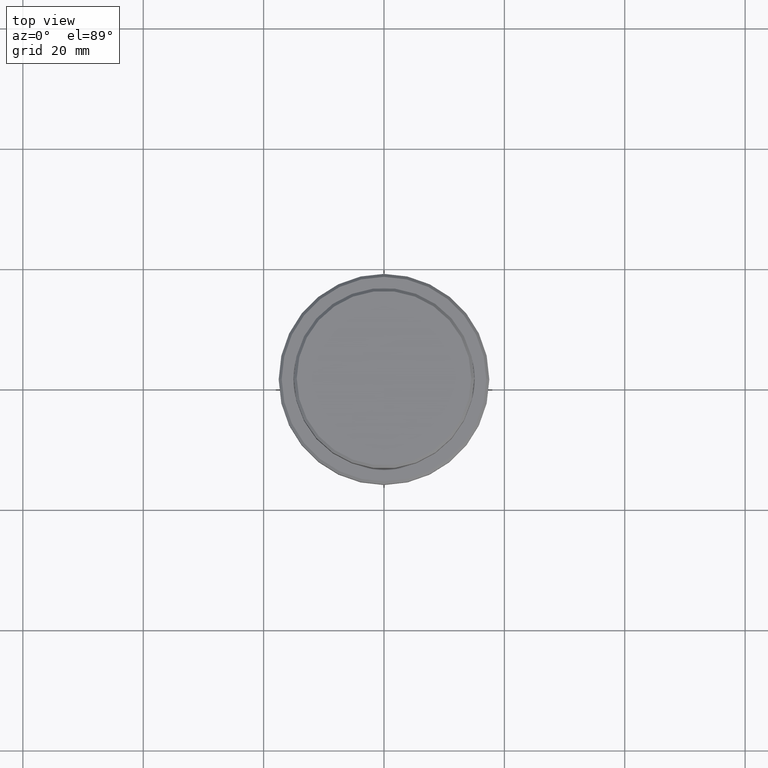
[diagram: clean part render]
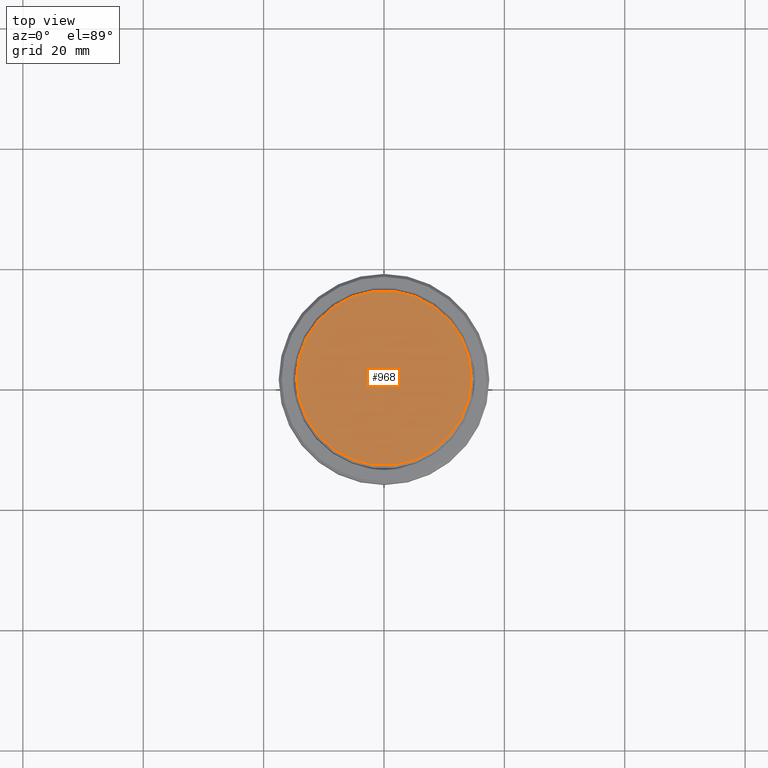
[diagram: same view with one face highlighted and labeled with its STEP entity id]
A machine part, top view. The second image highlights one B-rep face of the part: STEP entity #968.
In plain terms, the highlighted planar face has unit normal (0, -0, 1).
Its self-contained STEP definition (entity closure, byte-faithful):
#12 = VERTEX_POINT ( 'NONE', #295 ) ;
#295 = CARTESIAN_POINT ( 'NONE',  ( -14.50000000000001066, 0.000000000000000000, 0.000000000000000000 ) ) ;
#318 = AXIS2_PLACEMENT_3D ( 'NONE', #740, #1169, #750 ) ;
#321 = AXIS2_PLACEMENT_3D ( 'NONE', #561, #346, #1316 ) ;
#346 = DIRECTION ( 'NONE',  ( 0.000000000000000000, -0.000000000000000000, 1.000000000000000000 ) ) ;
#386 = EDGE_CURVE ( 'NONE', #12, #1156, #1193, .T. ) ;
#445 = CARTESIAN_POINT ( 'NONE',  ( 0.000000000000000000, 0.000000000000000000, 0.000000000000000000 ) ) ;
#504 = EDGE_LOOP ( 'NONE', ( #618, #1047 ) ) ;
#561 = CARTESIAN_POINT ( 'NONE',  ( 0.000000000000000000, 0.000000000000000000, 0.000000000000000000 ) ) ;
#588 = EDGE_CURVE ( 'NONE', #1156, #12, #870, .T. ) ;
#618 = ORIENTED_EDGE ( 'NONE', *, *, #386, .T. ) ;
#654 = FACE_OUTER_BOUND ( 'NONE', #504, .T. ) ;
#740 = CARTESIAN_POINT ( 'NONE',  ( 0.000000000000000000, 0.000000000000000000, 0.000000000000000000 ) ) ;
#750 = DIRECTION ( 'NONE',  ( 1.000000000000000000, 0.000000000000000000, 0.000000000000000000 ) ) ;
#783 = AXIS2_PLACEMENT_3D ( 'NONE', #445, #1413, #875 ) ;
#798 = PLANE ( 'NONE',  #321 ) ;
#870 = CIRCLE ( 'NONE', #318, 14.50000000000001066 ) ;
#875 = DIRECTION ( 'NONE',  ( 1.000000000000000000, 0.000000000000000000, 0.000000000000000000 ) ) ;
#968 = ADVANCED_FACE ( 'NONE', ( #654 ), #798, .T. ) ;
#1047 = ORIENTED_EDGE ( 'NONE', *, *, #588, .T. ) ;
#1156 = VERTEX_POINT ( 'NONE', #1352 ) ;
#1169 = DIRECTION ( 'NONE',  ( -0.000000000000000000, -0.000000000000000000, 1.000000000000000000 ) ) ;
#1193 = CIRCLE ( 'NONE', #783, 14.50000000000001066 ) ;
#1316 = DIRECTION ( 'NONE',  ( 1.000000000000000000, 0.000000000000000000, 0.000000000000000000 ) ) ;
#1352 = CARTESIAN_POINT ( 'NONE',  ( 14.50000000000001066, 1.806354028742346591E-15, 0.000000000000000000 ) ) ;
#1413 = DIRECTION ( 'NONE',  ( -0.000000000000000000, -0.000000000000000000, 1.000000000000000000 ) ) ;